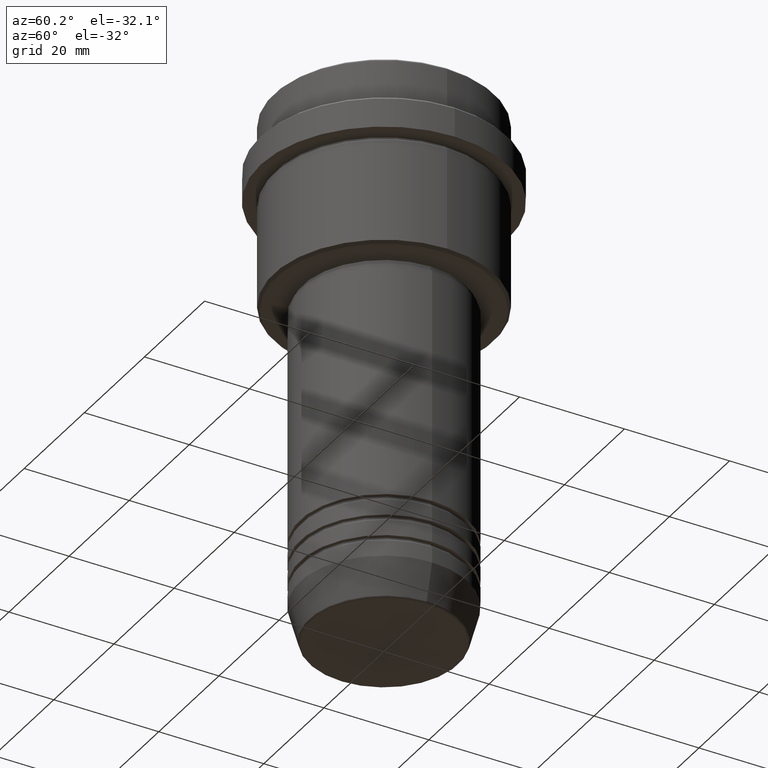
[diagram: clean part render]
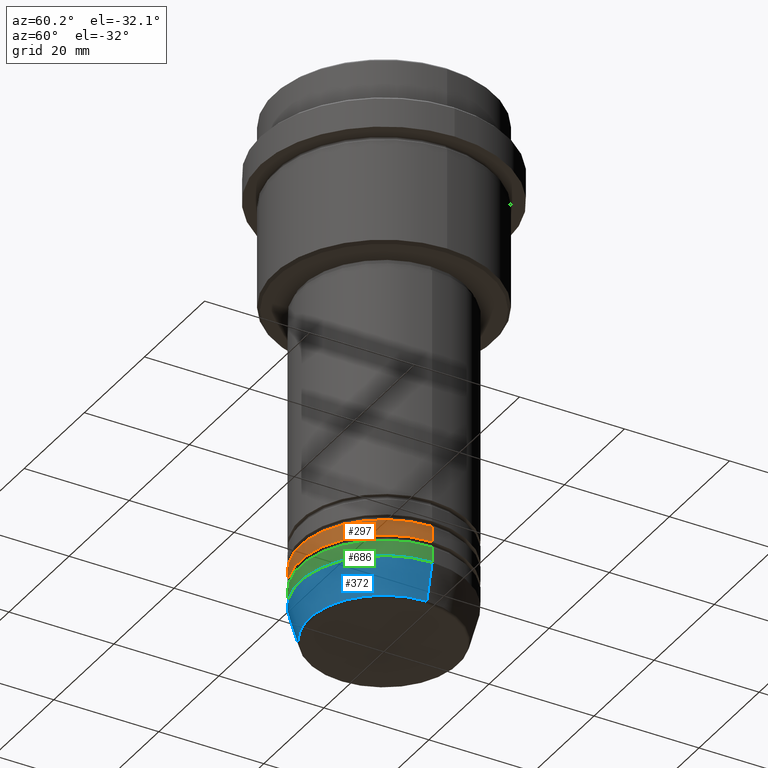
[diagram: same view with three faces highlighted in distinct colors, each labeled with its STEP entity id]
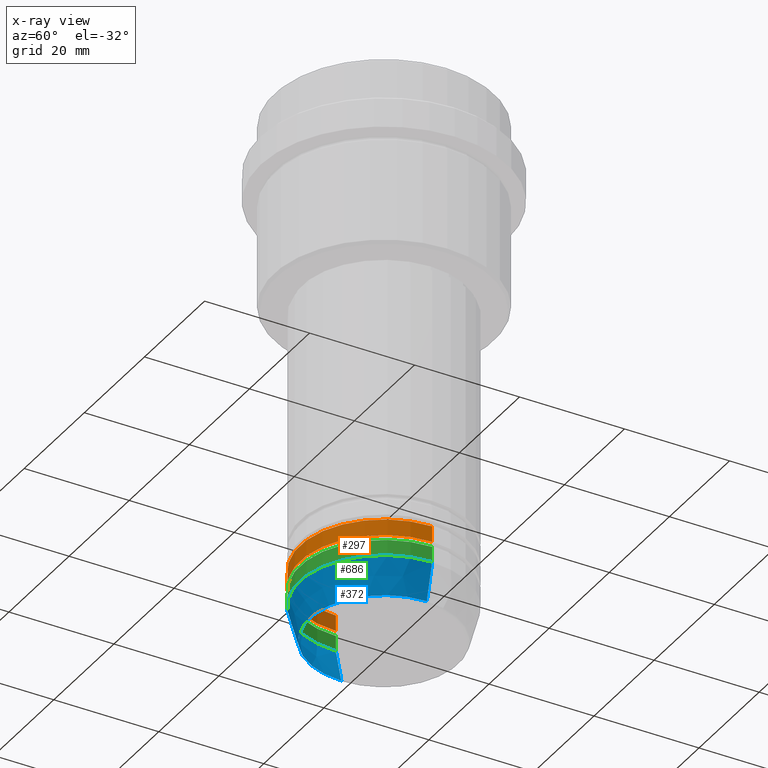
[diagram: x-ray of the same camera — body ghosted, the three highlighted faces saturated]
A machine part, auxiliary view with three faces highlighted in distinct colors.
The next image is the same camera in x-ray (body ghosted, the three faces saturated) — at least one of them is partly hidden behind the body in this view.
Their STEP definitions:

[orange] entity #297 — the highlighted cylindrical surface (partial cylindrical patch) has radius 16 mm, axis along (-0, -0, 1).
#71 = ORIENTED_EDGE ( 'NONE', *, *, #1153, .T. ) ;
#157 = LINE ( 'NONE', #1353, #1273 ) ;
#174 = VERTEX_POINT ( 'NONE', #305 ) ;
#185 = CIRCLE ( 'NONE', #252, 16.00000000000000000 ) ;
#194 = ORIENTED_EDGE ( 'NONE', *, *, #1365, .F. ) ;
#207 = DIRECTION ( 'NONE',  ( 1.000000000000000000, 0.000000000000000000, 0.000000000000000000 ) ) ;
#249 = DIRECTION ( 'NONE',  ( -0.000000000000000000, -0.000000000000000000, 1.000000000000000000 ) ) ;
#252 = AXIS2_PLACEMENT_3D ( 'NONE', #871, #424, #625 ) ;
#262 = CARTESIAN_POINT ( 'NONE',  ( 16.00000000000000000, 0.000000000000000000, -89.99999999999988631 ) ) ;
#297 = ADVANCED_FACE ( 'NONE', ( #982 ), #1303, .T. ) ;
#305 = CARTESIAN_POINT ( 'NONE',  ( 16.00000000000000000, 0.000000000000000000, -86.99999999999988631 ) ) ;
#311 = DIRECTION ( 'NONE',  ( -0.000000000000000000, -0.000000000000000000, 1.000000000000000000 ) ) ;
#315 = CARTESIAN_POINT ( 'NONE',  ( -16.00000000000000000, 1.959434878635765131E-15, -86.99999999999988631 ) ) ;
#424 = DIRECTION ( 'NONE',  ( -0.000000000000000000, -0.000000000000000000, 1.000000000000000000 ) ) ;
#505 = CARTESIAN_POINT ( 'NONE',  ( 0.000000000000000000, 0.000000000000000000, -89.99999999999988631 ) ) ;
#534 = AXIS2_PLACEMENT_3D ( 'NONE', #880, #311, #207 ) ;
#625 = DIRECTION ( 'NONE',  ( 1.000000000000000000, 0.000000000000000000, 0.000000000000000000 ) ) ;
#631 = EDGE_CURVE ( 'NONE', #1056, #174, #1070, .T. ) ;
#640 = EDGE_CURVE ( 'NONE', #852, #174, #185, .T. ) ;
#701 = VECTOR ( 'NONE', #1379, 1000.000000000000000 ) ;
#753 = CARTESIAN_POINT ( 'NONE',  ( -16.00000000000000000, 1.959434878635765131E-15, -89.99999999999988631 ) ) ;
#852 = VERTEX_POINT ( 'NONE', #315 ) ;
#871 = CARTESIAN_POINT ( 'NONE',  ( 0.000000000000000000, 0.000000000000000000, -86.99999999999988631 ) ) ;
#880 = CARTESIAN_POINT ( 'NONE',  ( 0.000000000000000000, 0.000000000000000000, 0.000000000000000000 ) ) ;
#972 = DIRECTION ( 'NONE',  ( -0.000000000000000000, -0.000000000000000000, 1.000000000000000000 ) ) ;
#982 = FACE_OUTER_BOUND ( 'NONE', #1253, .T. ) ;
#1056 = VERTEX_POINT ( 'NONE', #262 ) ;
#1068 = DIRECTION ( 'NONE',  ( 1.000000000000000000, 0.000000000000000000, 0.000000000000000000 ) ) ;
#1070 = LINE ( 'NONE', #1171, #701 ) ;
#1140 = VERTEX_POINT ( 'NONE', #753 ) ;
#1153 = EDGE_CURVE ( 'NONE', #1140, #1056, #1244, .T. ) ;
#1171 = CARTESIAN_POINT ( 'NONE',  ( 16.00000000000000000, 0.000000000000000000, 0.000000000000000000 ) ) ;
#1182 = AXIS2_PLACEMENT_3D ( 'NONE', #505, #972, #1068 ) ;
#1244 = CIRCLE ( 'NONE', #1182, 16.00000000000000000 ) ;
#1253 = EDGE_LOOP ( 'NONE', ( #194, #71, #1311, #1281 ) ) ;
#1273 = VECTOR ( 'NONE', #249, 1000.000000000000000 ) ;
#1281 = ORIENTED_EDGE ( 'NONE', *, *, #640, .F. ) ;
#1303 = CYLINDRICAL_SURFACE ( 'NONE', #534, 16.00000000000000000 ) ;
#1311 = ORIENTED_EDGE ( 'NONE', *, *, #631, .T. ) ;
#1353 = CARTESIAN_POINT ( 'NONE',  ( -16.00000000000000000, 1.959434878635765131E-15, 0.000000000000000000 ) ) ;
#1365 = EDGE_CURVE ( 'NONE', #1140, #852, #157, .T. ) ;
#1379 = DIRECTION ( 'NONE',  ( -0.000000000000000000, -0.000000000000000000, 1.000000000000000000 ) ) ;

[blue] entity #372 — the highlighted conical surface has half-angle 15 deg.
#3 = FACE_OUTER_BOUND ( 'NONE', #1016, .T. ) ;
#60 = LINE ( 'NONE', #1263, #1199 ) ;
#68 = DIRECTION ( 'NONE',  ( 0.2588190451025213501, 0.000000000000000000, 0.9659258262890680902 ) ) ;
#104 = CIRCLE ( 'NONE', #420, 14.22365507213718949 ) ;
#216 = DIRECTION ( 'NONE',  ( -0.000000000000000000, -0.000000000000000000, 1.000000000000000000 ) ) ;
#265 = EDGE_CURVE ( 'NONE', #611, #976, #861, .T. ) ;
#272 = DIRECTION ( 'NONE',  ( -0.000000000000000000, -0.000000000000000000, 1.000000000000000000 ) ) ;
#278 = CARTESIAN_POINT ( 'NONE',  ( -16.00000000000000000, 1.959434878635765131E-15, -94.00000000000000000 ) ) ;
#317 = ORIENTED_EDGE ( 'NONE', *, *, #925, .F. ) ;
#372 = ADVANCED_FACE ( 'NONE', ( #3 ), #1219, .T. ) ;
#420 = AXIS2_PLACEMENT_3D ( 'NONE', #1077, #955, #761 ) ;
#477 = CARTESIAN_POINT ( 'NONE',  ( 16.00000000000000000, 0.000000000000000000, -94.00000000000000000 ) ) ;
#544 = EDGE_CURVE ( 'NONE', #766, #976, #614, .T. ) ;
#611 = VERTEX_POINT ( 'NONE', #278 ) ;
#614 = LINE ( 'NONE', #1249, #863 ) ;
#643 = ORIENTED_EDGE ( 'NONE', *, *, #544, .T. ) ;
#653 = AXIS2_PLACEMENT_3D ( 'NONE', #688, #216, #1200 ) ;
#688 = CARTESIAN_POINT ( 'NONE',  ( 0.000000000000000000, 0.000000000000000000, -94.00000000000000000 ) ) ;
#717 = DIRECTION ( 'NONE',  ( 1.000000000000000000, 0.000000000000000000, 0.000000000000000000 ) ) ;
#731 = EDGE_CURVE ( 'NONE', #893, #766, #104, .T. ) ;
#748 = CARTESIAN_POINT ( 'NONE',  ( 0.000000000000000000, 0.000000000000000000, -94.00000000000000000 ) ) ;
#757 = ORIENTED_EDGE ( 'NONE', *, *, #265, .F. ) ;
#761 = DIRECTION ( 'NONE',  ( 1.000000000000000000, 0.000000000000000000, 0.000000000000000000 ) ) ;
#766 = VERTEX_POINT ( 'NONE', #1210 ) ;
#835 = DIRECTION ( 'NONE',  ( -0.2588190451025213501, 3.169619151431772337E-17, 0.9659258262890680902 ) ) ;
#861 = CIRCLE ( 'NONE', #1065, 16.00000000000000000 ) ;
#863 = VECTOR ( 'NONE', #68, 1000.000000000000000 ) ;
#893 = VERTEX_POINT ( 'NONE', #1205 ) ;
#925 = EDGE_CURVE ( 'NONE', #893, #611, #60, .T. ) ;
#955 = DIRECTION ( 'NONE',  ( -0.000000000000000000, -0.000000000000000000, 1.000000000000000000 ) ) ;
#976 = VERTEX_POINT ( 'NONE', #477 ) ;
#1016 = EDGE_LOOP ( 'NONE', ( #317, #1389, #643, #757 ) ) ;
#1065 = AXIS2_PLACEMENT_3D ( 'NONE', #748, #272, #717 ) ;
#1077 = CARTESIAN_POINT ( 'NONE',  ( 0.000000000000000000, 0.000000000000000000, -100.6294095225512706 ) ) ;
#1199 = VECTOR ( 'NONE', #835, 1000.000000000000000 ) ;
#1200 = DIRECTION ( 'NONE',  ( 1.000000000000000000, 0.000000000000000000, 0.000000000000000000 ) ) ;
#1205 = CARTESIAN_POINT ( 'NONE',  ( -14.22365507213718949, 1.850665122131323337E-15, -100.6294095225512706 ) ) ;
#1210 = CARTESIAN_POINT ( 'NONE',  ( 14.22365507213718949, 0.000000000000000000, -100.6294095225512706 ) ) ;
#1219 = CONICAL_SURFACE ( 'NONE', #653, 16.00000000000000000, 0.2617993877991500740 ) ;
#1249 = CARTESIAN_POINT ( 'NONE',  ( 16.00000000000000000, 0.000000000000000000, -94.00000000000000000 ) ) ;
#1263 = CARTESIAN_POINT ( 'NONE',  ( -16.00000000000000000, 1.959434878635765131E-15, -94.00000000000000000 ) ) ;
#1389 = ORIENTED_EDGE ( 'NONE', *, *, #731, .T. ) ;

[green] entity #686 — the highlighted cylindrical surface (partial cylindrical patch) has radius 16 mm, axis along (-0, -0, 1).
#5 = EDGE_CURVE ( 'NONE', #611, #848, #437, .T. ) ;
#19 = ORIENTED_EDGE ( 'NONE', *, *, #1146, .T. ) ;
#39 = DIRECTION ( 'NONE',  ( 1.000000000000000000, 0.000000000000000000, 0.000000000000000000 ) ) ;
#84 = DIRECTION ( 'NONE',  ( 1.000000000000000000, 0.000000000000000000, 0.000000000000000000 ) ) ;
#105 = DIRECTION ( 'NONE',  ( -0.000000000000000000, -0.000000000000000000, 1.000000000000000000 ) ) ;
#209 = CIRCLE ( 'NONE', #1197, 16.00000000000000000 ) ;
#265 = EDGE_CURVE ( 'NONE', #611, #976, #861, .T. ) ;
#272 = DIRECTION ( 'NONE',  ( -0.000000000000000000, -0.000000000000000000, 1.000000000000000000 ) ) ;
#276 = EDGE_LOOP ( 'NONE', ( #536, #939, #19, #741 ) ) ;
#278 = CARTESIAN_POINT ( 'NONE',  ( -16.00000000000000000, 1.959434878635765131E-15, -94.00000000000000000 ) ) ;
#336 = CARTESIAN_POINT ( 'NONE',  ( -16.00000000000000000, 1.959434878635765131E-15, -91.00000000000000000 ) ) ;
#411 = CARTESIAN_POINT ( 'NONE',  ( 16.00000000000000000, 0.000000000000000000, -91.00000000000000000 ) ) ;
#423 = CARTESIAN_POINT ( 'NONE',  ( 16.00000000000000000, 0.000000000000000000, 0.000000000000000000 ) ) ;
#437 = LINE ( 'NONE', #664, #1003 ) ;
#477 = CARTESIAN_POINT ( 'NONE',  ( 16.00000000000000000, 0.000000000000000000, -94.00000000000000000 ) ) ;
#536 = ORIENTED_EDGE ( 'NONE', *, *, #5, .F. ) ;
#577 = EDGE_CURVE ( 'NONE', #848, #694, #209, .T. ) ;
#611 = VERTEX_POINT ( 'NONE', #278 ) ;
#623 = DIRECTION ( 'NONE',  ( -0.000000000000000000, -0.000000000000000000, 1.000000000000000000 ) ) ;
#664 = CARTESIAN_POINT ( 'NONE',  ( -16.00000000000000000, 1.959434878635765131E-15, 0.000000000000000000 ) ) ;
#686 = ADVANCED_FACE ( 'NONE', ( #1188 ), #1388, .T. ) ;
#694 = VERTEX_POINT ( 'NONE', #411 ) ;
#711 = CARTESIAN_POINT ( 'NONE',  ( 0.000000000000000000, 0.000000000000000000, -91.00000000000000000 ) ) ;
#717 = DIRECTION ( 'NONE',  ( 1.000000000000000000, 0.000000000000000000, 0.000000000000000000 ) ) ;
#741 = ORIENTED_EDGE ( 'NONE', *, *, #577, .F. ) ;
#748 = CARTESIAN_POINT ( 'NONE',  ( 0.000000000000000000, 0.000000000000000000, -94.00000000000000000 ) ) ;
#823 = VECTOR ( 'NONE', #623, 1000.000000000000000 ) ;
#848 = VERTEX_POINT ( 'NONE', #336 ) ;
#861 = CIRCLE ( 'NONE', #1065, 16.00000000000000000 ) ;
#939 = ORIENTED_EDGE ( 'NONE', *, *, #265, .T. ) ;
#976 = VERTEX_POINT ( 'NONE', #477 ) ;
#1003 = VECTOR ( 'NONE', #1106, 1000.000000000000000 ) ;
#1034 = DIRECTION ( 'NONE',  ( -0.000000000000000000, -0.000000000000000000, 1.000000000000000000 ) ) ;
#1065 = AXIS2_PLACEMENT_3D ( 'NONE', #748, #272, #717 ) ;
#1076 = LINE ( 'NONE', #423, #823 ) ;
#1094 = AXIS2_PLACEMENT_3D ( 'NONE', #1278, #105, #84 ) ;
#1106 = DIRECTION ( 'NONE',  ( -0.000000000000000000, -0.000000000000000000, 1.000000000000000000 ) ) ;
#1146 = EDGE_CURVE ( 'NONE', #976, #694, #1076, .T. ) ;
#1188 = FACE_OUTER_BOUND ( 'NONE', #276, .T. ) ;
#1197 = AXIS2_PLACEMENT_3D ( 'NONE', #711, #1034, #39 ) ;
#1278 = CARTESIAN_POINT ( 'NONE',  ( 0.000000000000000000, 0.000000000000000000, 0.000000000000000000 ) ) ;
#1388 = CYLINDRICAL_SURFACE ( 'NONE', #1094, 16.00000000000000000 ) ;